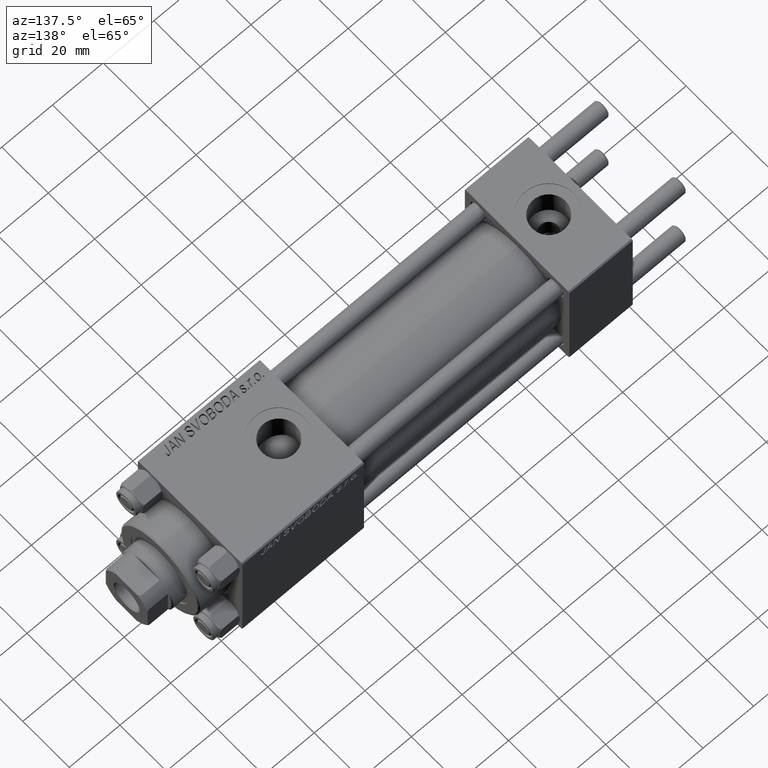
[diagram: clean part render]
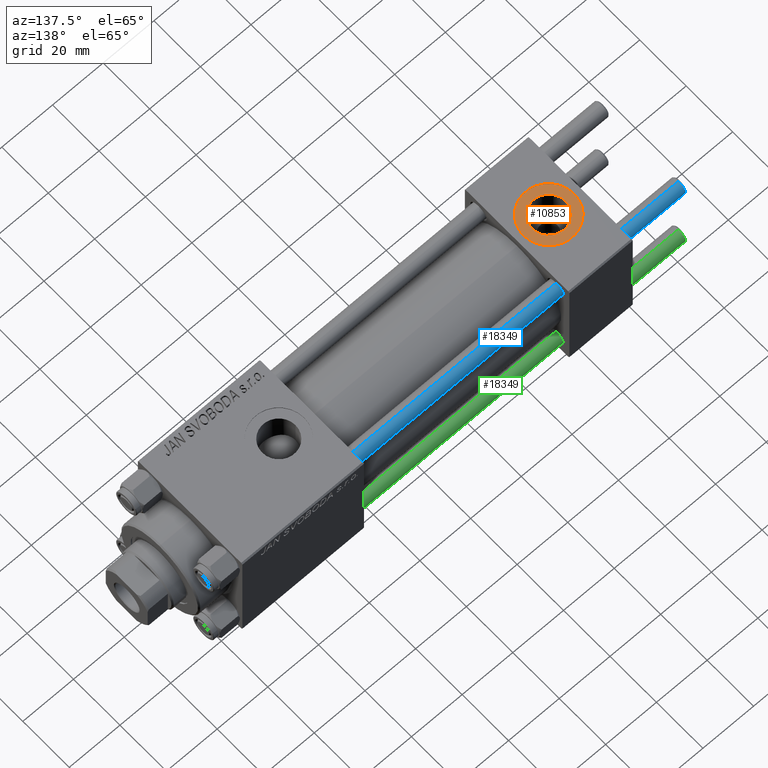
[diagram: same view with three faces highlighted in distinct colors, each labeled with its STEP entity id]
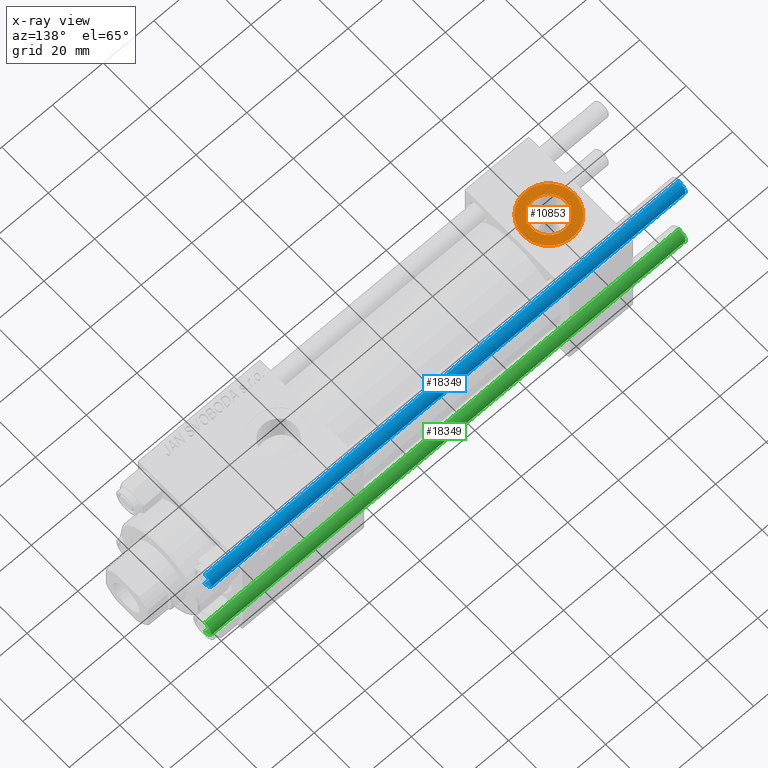
[diagram: x-ray of the same camera — body ghosted, the three highlighted faces saturated]
A machine part, auxiliary view with three faces highlighted in distinct colors.
The next image is the same camera in x-ray (body ghosted, the three faces saturated) — at least one of them is partly hidden behind the body in this view.
Their STEP definitions:

[orange] entity #10853 — the highlighted planar face has unit normal (0, 0, 1).
#1645 = FACE_OUTER_BOUND ( 'NONE', #48795, .T. ) ;
#2801 = CARTESIAN_POINT ( 'NONE',  ( 22.50000000000000000, -1.734723475976807094E-15, 22.30000000000000071 ) ) ;
#4065 = AXIS2_PLACEMENT_3D ( 'NONE', #48174, #36593, #40883 ) ;
#5685 = FACE_BOUND ( 'NONE', #22809, .T. ) ;
#7902 = DIRECTION ( 'NONE',  ( 1.000000000000000000, 0.000000000000000000, 0.000000000000000000 ) ) ;
#9052 = CARTESIAN_POINT ( 'NONE',  ( 5.920000000000002593, -9.289058821378490386E-16, 22.30000000000000071 ) ) ;
#9413 = EDGE_CURVE ( 'NONE', #17057, #25499, #27463, .T. ) ;
#9806 = VERTEX_POINT ( 'NONE', #30448 ) ;
#9982 = PLANE ( 'NONE',  #29909 ) ;
#10487 = ORIENTED_EDGE ( 'NONE', *, *, #37776, .F. ) ;
#10853 = ADVANCED_FACE ( 'NONE', ( #5685, #1645 ), #9982, .T. ) ;
#11094 = DIRECTION ( 'NONE',  ( 0.000000000000000000, 0.000000000000000000, 1.000000000000000000 ) ) ;
#13361 = DIRECTION ( 'NONE',  ( 0.000000000000000000, 0.000000000000000000, 1.000000000000000000 ) ) ;
#14640 = AXIS2_PLACEMENT_3D ( 'NONE', #42961, #46239, #7902 ) ;
#14727 = CARTESIAN_POINT ( 'NONE',  ( 2.500000000000003997, -5.100766768294543310E-16, 22.30000000000000071 ) ) ;
#14909 = EDGE_CURVE ( 'NONE', #33337, #9806, #46852, .T. ) ;
#17045 = DIRECTION ( 'NONE',  ( 0.000000000000000000, 0.000000000000000000, 1.000000000000000000 ) ) ;
#17057 = VERTEX_POINT ( 'NONE', #14727 ) ;
#17137 = DIRECTION ( 'NONE',  ( 1.000000000000000000, 0.000000000000000000, 0.000000000000000000 ) ) ;
#17583 = EDGE_CURVE ( 'NONE', #25499, #17057, #38081, .T. ) ;
#18660 = DIRECTION ( 'NONE',  ( 1.000000000000000000, 0.000000000000000000, 0.000000000000000000 ) ) ;
#21376 = CIRCLE ( 'NONE', #41541, 6.579999999999999183 ) ;
#22809 = EDGE_LOOP ( 'NONE', ( #10487, #38883 ) ) ;
#24176 = ORIENTED_EDGE ( 'NONE', *, *, #9413, .T. ) ;
#25095 = ORIENTED_EDGE ( 'NONE', *, *, #17583, .T. ) ;
#25499 = VERTEX_POINT ( 'NONE', #2801 ) ;
#27463 = CIRCLE ( 'NONE', #4065, 9.999999999999998224 ) ;
#29909 = AXIS2_PLACEMENT_3D ( 'NONE', #45033, #17045, #36982 ) ;
#30009 = CARTESIAN_POINT ( 'NONE',  ( 12.50000000000000000, -1.734723475976807094E-15, 22.30000000000000071 ) ) ;
#30448 = CARTESIAN_POINT ( 'NONE',  ( 19.07999999999999829, -1.734723475976807094E-15, 22.30000000000000071 ) ) ;
#33337 = VERTEX_POINT ( 'NONE', #9052 ) ;
#36593 = DIRECTION ( 'NONE',  ( 0.000000000000000000, 0.000000000000000000, 1.000000000000000000 ) ) ;
#36982 = DIRECTION ( 'NONE',  ( 1.000000000000000000, 0.000000000000000000, -0.000000000000000000 ) ) ;
#37776 = EDGE_CURVE ( 'NONE', #9806, #33337, #21376, .T. ) ;
#38081 = CIRCLE ( 'NONE', #38859, 9.999999999999998224 ) ;
#38859 = AXIS2_PLACEMENT_3D ( 'NONE', #43885, #13361, #17137 ) ;
#38883 = ORIENTED_EDGE ( 'NONE', *, *, #14909, .F. ) ;
#40883 = DIRECTION ( 'NONE',  ( 1.000000000000000000, 0.000000000000000000, 0.000000000000000000 ) ) ;
#41541 = AXIS2_PLACEMENT_3D ( 'NONE', #30009, #11094, #18660 ) ;
#42961 = CARTESIAN_POINT ( 'NONE',  ( 12.50000000000000000, -1.734723475976807094E-15, 22.30000000000000071 ) ) ;
#43885 = CARTESIAN_POINT ( 'NONE',  ( 12.50000000000000000, -1.734723475976807094E-15, 22.30000000000000071 ) ) ;
#45033 = CARTESIAN_POINT ( 'NONE',  ( 12.50000000000000000, -1.734723475976807094E-15, 22.30000000000000071 ) ) ;
#46239 = DIRECTION ( 'NONE',  ( 0.000000000000000000, 0.000000000000000000, 1.000000000000000000 ) ) ;
#46852 = CIRCLE ( 'NONE', #14640, 6.579999999999999183 ) ;
#48174 = CARTESIAN_POINT ( 'NONE',  ( 12.50000000000000000, -1.734723475976807094E-15, 22.30000000000000071 ) ) ;
#48795 = EDGE_LOOP ( 'NONE', ( #25095, #24176 ) ) ;

[blue] entity #18349 — the highlighted cylindrical surface (edge-blend (fillet) strip) has radius 3 mm, axis along (-1, -0, -0).
#4448 = FACE_OUTER_BOUND ( 'NONE', #19485, .T. ) ;
#5273 = CARTESIAN_POINT ( 'NONE',  ( 3.000000000000000444, 3.673940397442060361E-16, 187.4999999999999716 ) ) ;
#5394 = VECTOR ( 'NONE', #10279, 1000.000000000000000 ) ;
#9883 = VECTOR ( 'NONE', #12299, 1000.000000000000000 ) ;
#10236 = DIRECTION ( 'NONE',  ( 0.000000000000000000, 0.000000000000000000, -1.000000000000000000 ) ) ;
#10279 = DIRECTION ( 'NONE',  ( -0.000000000000000000, -0.000000000000000000, -1.000000000000000000 ) ) ;
#12299 = DIRECTION ( 'NONE',  ( -0.000000000000000000, -0.000000000000000000, -1.000000000000000000 ) ) ;
#13115 = AXIS2_PLACEMENT_3D ( 'NONE', #36001, #27932, #17063 ) ;
#13336 = VERTEX_POINT ( 'NONE', #5273 ) ;
#13950 = VERTEX_POINT ( 'NONE', #39171 ) ;
#13954 = CIRCLE ( 'NONE', #18774, 3.000000000000000444 ) ;
#15011 = ORIENTED_EDGE ( 'NONE', *, *, #41504, .T. ) ;
#15145 = ORIENTED_EDGE ( 'NONE', *, *, #17720, .F. ) ;
#16089 = CARTESIAN_POINT ( 'NONE',  ( -3.000000000000000444, 0.000000000000000000, 188.0000000000000000 ) ) ;
#16628 = AXIS2_PLACEMENT_3D ( 'NONE', #45277, #10236, #29651 ) ;
#17063 = DIRECTION ( 'NONE',  ( -1.000000000000000000, 0.000000000000000000, 0.000000000000000000 ) ) ;
#17720 = EDGE_CURVE ( 'NONE', #41601, #13950, #19379, .T. ) ;
#18349 = ADVANCED_FACE ( 'NONE', ( #4448 ), #31953, .T. ) ;
#18774 = AXIS2_PLACEMENT_3D ( 'NONE', #34326, #26503, #23706 ) ;
#19379 = LINE ( 'NONE', #16089, #9883 ) ;
#19485 = EDGE_LOOP ( 'NONE', ( #15011, #24236, #28021, #15145 ) ) ;
#23068 = VERTEX_POINT ( 'NONE', #26089 ) ;
#23706 = DIRECTION ( 'NONE',  ( 1.000000000000000000, 0.000000000000000000, 0.000000000000000000 ) ) ;
#24236 = ORIENTED_EDGE ( 'NONE', *, *, #46205, .T. ) ;
#26089 = CARTESIAN_POINT ( 'NONE',  ( 3.000000000000000444, 3.673940397442060361E-16, 0.5000000000000559552 ) ) ;
#26503 = DIRECTION ( 'NONE',  ( -0.000000000000000000, -0.000000000000000000, 1.000000000000000000 ) ) ;
#27932 = DIRECTION ( 'NONE',  ( -0.000000000000000000, -0.000000000000000000, -1.000000000000000000 ) ) ;
#28021 = ORIENTED_EDGE ( 'NONE', *, *, #31980, .T. ) ;
#29651 = DIRECTION ( 'NONE',  ( 1.000000000000000000, 0.000000000000000000, 0.000000000000000000 ) ) ;
#30361 = CIRCLE ( 'NONE', #16628, 3.000000000000000444 ) ;
#31953 = CYLINDRICAL_SURFACE ( 'NONE', #13115, 3.000000000000000444 ) ;
#31980 = EDGE_CURVE ( 'NONE', #23068, #13950, #13954, .T. ) ;
#34326 = CARTESIAN_POINT ( 'NONE',  ( 0.000000000000000000, 0.000000000000000000, 0.5000000000000559552 ) ) ;
#36001 = CARTESIAN_POINT ( 'NONE',  ( 0.000000000000000000, 0.000000000000000000, 188.0000000000000000 ) ) ;
#39171 = CARTESIAN_POINT ( 'NONE',  ( -3.000000000000000444, 0.000000000000000000, 0.5000000000000559552 ) ) ;
#41504 = EDGE_CURVE ( 'NONE', #41601, #13336, #30361, .T. ) ;
#41601 = VERTEX_POINT ( 'NONE', #42735 ) ;
#42735 = CARTESIAN_POINT ( 'NONE',  ( -3.000000000000000444, 0.000000000000000000, 187.4999999999999716 ) ) ;
#44098 = LINE ( 'NONE', #44834, #5394 ) ;
#44834 = CARTESIAN_POINT ( 'NONE',  ( 3.000000000000000444, 3.673940397442060361E-16, 188.0000000000000000 ) ) ;
#45277 = CARTESIAN_POINT ( 'NONE',  ( 0.000000000000000000, 0.000000000000000000, 187.4999999999999716 ) ) ;
#46205 = EDGE_CURVE ( 'NONE', #13336, #23068, #44098, .T. ) ;

[green] entity #18349 — the highlighted cylindrical surface (edge-blend (fillet) strip) has radius 3 mm, axis along (1, 0, -0).
#4448 = FACE_OUTER_BOUND ( 'NONE', #19485, .T. ) ;
#5273 = CARTESIAN_POINT ( 'NONE',  ( 3.000000000000000444, 3.673940397442060361E-16, 187.4999999999999716 ) ) ;
#5394 = VECTOR ( 'NONE', #10279, 1000.000000000000000 ) ;
#9883 = VECTOR ( 'NONE', #12299, 1000.000000000000000 ) ;
#10236 = DIRECTION ( 'NONE',  ( 0.000000000000000000, 0.000000000000000000, -1.000000000000000000 ) ) ;
#10279 = DIRECTION ( 'NONE',  ( -0.000000000000000000, -0.000000000000000000, -1.000000000000000000 ) ) ;
#12299 = DIRECTION ( 'NONE',  ( -0.000000000000000000, -0.000000000000000000, -1.000000000000000000 ) ) ;
#13115 = AXIS2_PLACEMENT_3D ( 'NONE', #36001, #27932, #17063 ) ;
#13336 = VERTEX_POINT ( 'NONE', #5273 ) ;
#13950 = VERTEX_POINT ( 'NONE', #39171 ) ;
#13954 = CIRCLE ( 'NONE', #18774, 3.000000000000000444 ) ;
#15011 = ORIENTED_EDGE ( 'NONE', *, *, #41504, .T. ) ;
#15145 = ORIENTED_EDGE ( 'NONE', *, *, #17720, .F. ) ;
#16089 = CARTESIAN_POINT ( 'NONE',  ( -3.000000000000000444, 0.000000000000000000, 188.0000000000000000 ) ) ;
#16628 = AXIS2_PLACEMENT_3D ( 'NONE', #45277, #10236, #29651 ) ;
#17063 = DIRECTION ( 'NONE',  ( -1.000000000000000000, 0.000000000000000000, 0.000000000000000000 ) ) ;
#17720 = EDGE_CURVE ( 'NONE', #41601, #13950, #19379, .T. ) ;
#18349 = ADVANCED_FACE ( 'NONE', ( #4448 ), #31953, .T. ) ;
#18774 = AXIS2_PLACEMENT_3D ( 'NONE', #34326, #26503, #23706 ) ;
#19379 = LINE ( 'NONE', #16089, #9883 ) ;
#19485 = EDGE_LOOP ( 'NONE', ( #15011, #24236, #28021, #15145 ) ) ;
#23068 = VERTEX_POINT ( 'NONE', #26089 ) ;
#23706 = DIRECTION ( 'NONE',  ( 1.000000000000000000, 0.000000000000000000, 0.000000000000000000 ) ) ;
#24236 = ORIENTED_EDGE ( 'NONE', *, *, #46205, .T. ) ;
#26089 = CARTESIAN_POINT ( 'NONE',  ( 3.000000000000000444, 3.673940397442060361E-16, 0.5000000000000559552 ) ) ;
#26503 = DIRECTION ( 'NONE',  ( -0.000000000000000000, -0.000000000000000000, 1.000000000000000000 ) ) ;
#27932 = DIRECTION ( 'NONE',  ( -0.000000000000000000, -0.000000000000000000, -1.000000000000000000 ) ) ;
#28021 = ORIENTED_EDGE ( 'NONE', *, *, #31980, .T. ) ;
#29651 = DIRECTION ( 'NONE',  ( 1.000000000000000000, 0.000000000000000000, 0.000000000000000000 ) ) ;
#30361 = CIRCLE ( 'NONE', #16628, 3.000000000000000444 ) ;
#31953 = CYLINDRICAL_SURFACE ( 'NONE', #13115, 3.000000000000000444 ) ;
#31980 = EDGE_CURVE ( 'NONE', #23068, #13950, #13954, .T. ) ;
#34326 = CARTESIAN_POINT ( 'NONE',  ( 0.000000000000000000, 0.000000000000000000, 0.5000000000000559552 ) ) ;
#36001 = CARTESIAN_POINT ( 'NONE',  ( 0.000000000000000000, 0.000000000000000000, 188.0000000000000000 ) ) ;
#39171 = CARTESIAN_POINT ( 'NONE',  ( -3.000000000000000444, 0.000000000000000000, 0.5000000000000559552 ) ) ;
#41504 = EDGE_CURVE ( 'NONE', #41601, #13336, #30361, .T. ) ;
#41601 = VERTEX_POINT ( 'NONE', #42735 ) ;
#42735 = CARTESIAN_POINT ( 'NONE',  ( -3.000000000000000444, 0.000000000000000000, 187.4999999999999716 ) ) ;
#44098 = LINE ( 'NONE', #44834, #5394 ) ;
#44834 = CARTESIAN_POINT ( 'NONE',  ( 3.000000000000000444, 3.673940397442060361E-16, 188.0000000000000000 ) ) ;
#45277 = CARTESIAN_POINT ( 'NONE',  ( 0.000000000000000000, 0.000000000000000000, 187.4999999999999716 ) ) ;
#46205 = EDGE_CURVE ( 'NONE', #13336, #23068, #44098, .T. ) ;